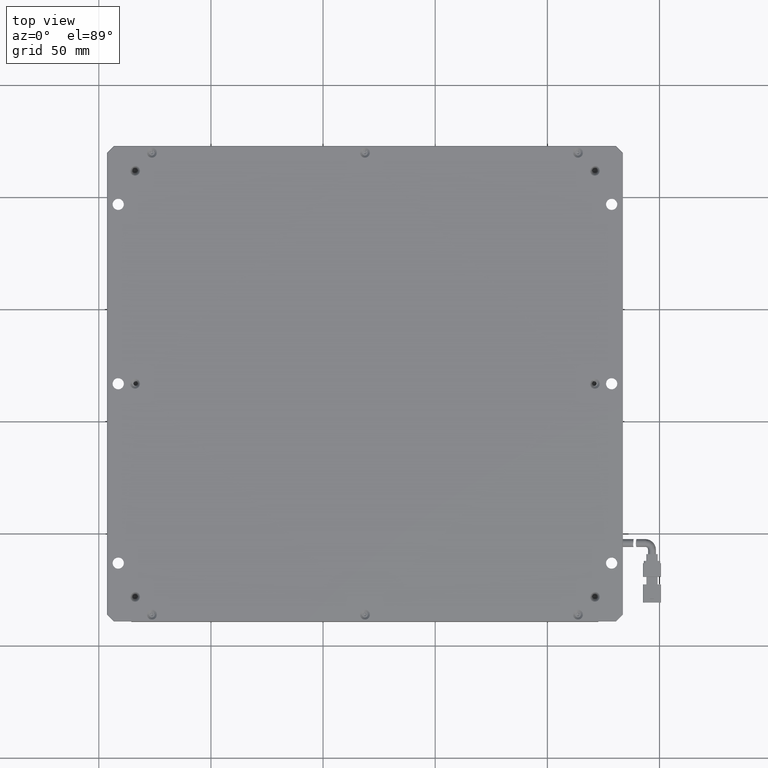
[diagram: clean part render]
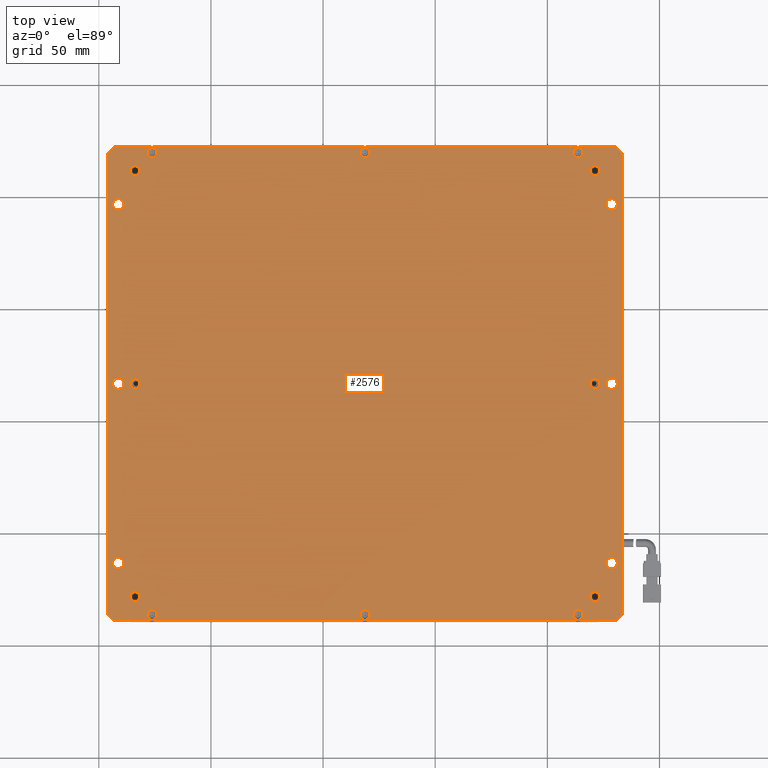
[diagram: same view with one face highlighted and labeled with its STEP entity id]
A machine part, top view. The second image highlights one B-rep face of the part: STEP entity #2576.
In plain terms, the highlighted planar face has unit normal (0, -0, 1).
Its self-contained STEP definition (entity closure, byte-faithful):
#47 = VERTEX_POINT ( 'NONE', #14358 ) ;
#54 = ORIENTED_EDGE ( 'NONE', *, *, #3240, .T. ) ;
#68 = ORIENTED_EDGE ( 'NONE', *, *, #10911, .F. ) ;
#232 = FACE_BOUND ( 'NONE', #1851, .T. ) ;
#233 = AXIS2_PLACEMENT_3D ( 'NONE', #2432, #897, #4274 ) ;
#266 = VERTEX_POINT ( 'NONE', #6426 ) ;
#312 = VERTEX_POINT ( 'NONE', #8160 ) ;
#415 = CARTESIAN_POINT ( 'NONE',  ( 16.46575058245078400, -136.3787539827808600, 1.999999999985902800 ) ) ;
#473 = CARTESIAN_POINT ( 'NONE',  ( 133.6657505824760800, -139.0787539827808200, 1.999999999976352700 ) ) ;
#510 = CIRCLE ( 'NONE', #3984, 2.500000000000002200 ) ;
#518 = DIRECTION ( 'NONE',  ( -0.7071067811865526800, -0.7071067811865422400, 1.737280514149831800E-015 ) ) ;
#574 = DIRECTION ( 'NONE',  ( 1.000000000000000000, 0.0000000000000000000, 0.0000000000000000000 ) ) ;
#583 = CARTESIAN_POINT ( 'NONE',  ( 18.66575058247609000, -136.3787539827808600, 1.999999999985902800 ) ) ;
#616 = CARTESIAN_POINT ( 'NONE',  ( -76.33424941752390700, 69.62124601721916400, 1.999999999985902800 ) ) ;
#674 = AXIS2_PLACEMENT_3D ( 'NONE', #2113, #21173, #7242 ) ;
#733 = EDGE_CURVE ( 'NONE', #1668, #15172, #14332, .T. ) ;
#877 = ORIENTED_EDGE ( 'NONE', *, *, #20774, .T. ) ;
#897 = DIRECTION ( 'NONE',  ( -0.0000000000000000000, 0.0000000000000000000, -1.000000000000000000 ) ) ;
#1046 = VERTEX_POINT ( 'NONE', #1672 ) ;
#1075 = FACE_BOUND ( 'NONE', #11427, .T. ) ;
#1104 = EDGE_CURVE ( 'NONE', #13782, #312, #12644, .T. ) ;
#1109 = CIRCLE ( 'NONE', #10738, 2.200000000061666400 ) ;
#1137 = ORIENTED_EDGE ( 'NONE', *, *, #6405, .T. ) ;
#1305 = EDGE_CURVE ( 'NONE', #10636, #11293, #17495, .T. ) ;
#1312 = CARTESIAN_POINT ( 'NONE',  ( -78.53424941752193400, -136.3787539827808100, 1.999999999985902800 ) ) ;
#1484 = CIRCLE ( 'NONE', #13340, 2.199999999998023100 ) ;
#1526 = AXIS2_PLACEMENT_3D ( 'NONE', #16575, #13045, #18215 ) ;
#1606 = VERTEX_POINT ( 'NONE', #3424 ) ;
#1617 = CARTESIAN_POINT ( 'NONE',  ( 128.6657505824760500, 46.62124601721915000, 1.999999999976353100 ) ) ;
#1636 = FACE_BOUND ( 'NONE', #8168, .T. ) ;
#1668 = VERTEX_POINT ( 'NONE', #7067 ) ;
#1672 = CARTESIAN_POINT ( 'NONE',  ( -78.53424941752193400, 69.62124601721916400, 1.999999999985902800 ) ) ;
#1807 = CARTESIAN_POINT ( 'NONE',  ( -86.03424941758555600, 61.62124601721919200, 1.999999999985902800 ) ) ;
#1851 = EDGE_LOOP ( 'NONE', ( #14798, #10312 ) ) ;
#1950 = CIRCLE ( 'NONE', #13888, 2.200000000061652600 ) ;
#1980 = EDGE_CURVE ( 'NONE', #3348, #9217, #4116, .T. ) ;
#2017 = EDGE_CURVE ( 'NONE', #1046, #21547, #5497, .T. ) ;
#2051 = CARTESIAN_POINT ( 'NONE',  ( 133.3657505824761200, -136.2544899140688700, 1.999999999976354900 ) ) ;
#2111 = DIRECTION ( 'NONE',  ( 1.000000000000000000, 0.0000000000000000000, 0.0000000000000000000 ) ) ;
#2113 = CARTESIAN_POINT ( 'NONE',  ( 18.66575058247609000, -136.3787539827808600, 1.999999999985902800 ) ) ;
#2167 = DIRECTION ( 'NONE',  ( 0.0000000000000000000, 0.0000000000000000000, -1.000000000000000000 ) ) ;
#2237 = CARTESIAN_POINT ( 'NONE',  ( 121.1657505824761100, -128.3787539827808100, 1.999999999929059400 ) ) ;
#2242 = DIRECTION ( 'NONE',  ( -1.000000000000000000, -0.0000000000000000000, -0.0000000000000000000 ) ) ;
#2276 = DIRECTION ( 'NONE',  ( 0.0000000000000000000, 0.0000000000000000000, -1.000000000000000000 ) ) ;
#2377 = CARTESIAN_POINT ( 'NONE',  ( -96.03424941752389500, 72.62124601721916400, 1.999999999976353100 ) ) ;
#2432 = CARTESIAN_POINT ( 'NONE',  ( 121.1657505824760500, 61.62124601721919200, 1.999999999929059400 ) ) ;
#2433 = VERTEX_POINT ( 'NONE', #18198 ) ;
#2504 = ORIENTED_EDGE ( 'NONE', *, *, #10300, .T. ) ;
#2506 = CARTESIAN_POINT ( 'NONE',  ( 133.6657505824760800, 72.32124601721918100, 1.999999999976353100 ) ) ;
#2527 = ORIENTED_EDGE ( 'NONE', *, *, #18387, .T. ) ;
#2545 = ORIENTED_EDGE ( 'NONE', *, *, #1980, .T. ) ;
#2576 = ADVANCED_FACE ( 'NONE', ( #9571, #232, #14213, #15305, #9028, #18513, #10393, #4649, #9314, #16900, #15040, #5214, #1636, #19577, #5750, #4913, #1075, #19047, #6017 ), #13400, .T. ) ;
#2682 = VERTEX_POINT ( 'NONE', #7606 ) ;
#2722 = EDGE_CURVE ( 'NONE', #15852, #19814, #20621, .T. ) ;
#2772 = CIRCLE ( 'NONE', #14168, 2.199999999932061600 ) ;
#2823 = CARTESIAN_POINT ( 'NONE',  ( 130.5414865137641100, 72.32124601721918100, 1.999999999976356700 ) ) ;
#2856 = ORIENTED_EDGE ( 'NONE', *, *, #5921, .T. ) ;
#2963 = AXIS2_PLACEMENT_3D ( 'NONE', #3630, #13817, #14028 ) ;
#3063 = VECTOR ( 'NONE', #518, 1000.000000000000100 ) ;
#3159 = CARTESIAN_POINT ( 'NONE',  ( 113.6657505824760800, 69.62124601721916400, 1.999999999985902800 ) ) ;
#3211 = DIRECTION ( 'NONE',  ( 0.0000000000000000000, 0.0000000000000000000, -1.000000000000000000 ) ) ;
#3212 = DIRECTION ( 'NONE',  ( 1.000000000000000000, 0.0000000000000000000, 0.0000000000000000000 ) ) ;
#3240 = EDGE_CURVE ( 'NONE', #9242, #3827, #12224, .T. ) ;
#3261 = AXIS2_PLACEMENT_3D ( 'NONE', #583, #7384, #12755 ) ;
#3348 = VERTEX_POINT ( 'NONE', #22538 ) ;
#3424 = CARTESIAN_POINT ( 'NONE',  ( -88.83424941752386400, -113.3787539827808200, 1.999999999976353100 ) ) ;
#3450 = ORIENTED_EDGE ( 'NONE', *, *, #22133, .T. ) ;
#3615 = DIRECTION ( 'NONE',  ( 1.000000000000000000, 0.0000000000000000000, 0.0000000000000000000 ) ) ;
#3630 = CARTESIAN_POINT ( 'NONE',  ( 121.1657505824761100, -128.3787539827808100, 1.999999999929059400 ) ) ;
#3825 = CARTESIAN_POINT ( 'NONE',  ( 121.1657505824761100, -33.37875398278082900, 1.999999999929059400 ) ) ;
#3827 = VERTEX_POINT ( 'NONE', #1312 ) ;
#3900 = ORIENTED_EDGE ( 'NONE', *, *, #8902, .T. ) ;
#3984 = AXIS2_PLACEMENT_3D ( 'NONE', #14491, #2167, #16150 ) ;
#4053 = DIRECTION ( 'NONE',  ( -0.0000000000000000000, 1.000000000000000000, 0.0000000000000000000 ) ) ;
#4060 = EDGE_CURVE ( 'NONE', #21547, #1046, #1484, .T. ) ;
#4116 = CIRCLE ( 'NONE', #6242, 2.200000000061652600 ) ;
#4221 = AXIS2_PLACEMENT_3D ( 'NONE', #9752, #19966, #18522 ) ;
#4241 = CARTESIAN_POINT ( 'NONE',  ( -83.83424941752387800, -33.37875398278082900, 1.999999999985902800 ) ) ;
#4274 = DIRECTION ( 'NONE',  ( 1.000000000000000000, 0.0000000000000000000, 0.0000000000000000000 ) ) ;
#4553 = VECTOR ( 'NONE', #9629, 1000.000000000000000 ) ;
#4578 = CIRCLE ( 'NONE', #19366, 2.200000000025306600 ) ;
#4649 = FACE_BOUND ( 'NONE', #10163, .T. ) ;
#4742 = ORIENTED_EDGE ( 'NONE', *, *, #1305, .T. ) ;
#4806 = EDGE_CURVE ( 'NONE', #15833, #16405, #11115, .T. ) ;
#4913 = FACE_BOUND ( 'NONE', #11873, .T. ) ;
#5139 = CIRCLE ( 'NONE', #674, 2.200000000025306600 ) ;
#5177 = DIRECTION ( 'NONE',  ( 0.0000000000000000000, 0.0000000000000000000, -1.000000000000000000 ) ) ;
#5214 = FACE_BOUND ( 'NONE', #9244, .T. ) ;
#5216 = DIRECTION ( 'NONE',  ( 0.0000000000000000000, -0.0000000000000000000, 1.000000000000000000 ) ) ;
#5249 = ORIENTED_EDGE ( 'NONE', *, *, #20494, .T. ) ;
#5365 = VERTEX_POINT ( 'NONE', #1807 ) ;
#5382 = CARTESIAN_POINT ( 'NONE',  ( 113.6657505824761600, -136.3787539827808900, 1.999999999985902800 ) ) ;
#5495 = VERTEX_POINT ( 'NONE', #18027 ) ;
#5497 = CIRCLE ( 'NONE', #1526, 2.199999999998023100 ) ;
#5522 = LINE ( 'NONE', #11534, #6609 ) ;
#5532 = VERTEX_POINT ( 'NONE', #17874 ) ;
#5750 = FACE_BOUND ( 'NONE', #12733, .T. ) ;
#5754 = DIRECTION ( 'NONE',  ( 0.0000000000000000000, 0.0000000000000000000, -1.000000000000000000 ) ) ;
#5775 = CARTESIAN_POINT ( 'NONE',  ( 131.1657505824760800, 46.62124601721915000, 1.999999999976353100 ) ) ;
#5866 = DIRECTION ( 'NONE',  ( 1.000000000000000000, 0.0000000000000000000, 0.0000000000000000000 ) ) ;
#5901 = LINE ( 'NONE', #22213, #14644 ) ;
#5916 = EDGE_LOOP ( 'NONE', ( #2856, #20169 ) ) ;
#5921 = EDGE_CURVE ( 'NONE', #15172, #1668, #14305, .T. ) ;
#5925 = AXIS2_PLACEMENT_3D ( 'NONE', #11137, #9405, #20045 ) ;
#5926 = CIRCLE ( 'NONE', #19969, 2.200000000061666400 ) ;
#5955 = DIRECTION ( 'NONE',  ( -0.0000000000000000000, 0.0000000000000000000, -1.000000000000000000 ) ) ;
#6017 = FACE_OUTER_BOUND ( 'NONE', #8872, .T. ) ;
#6067 = DIRECTION ( 'NONE',  ( -0.0000000000000000000, 0.0000000000000000000, -1.000000000000000000 ) ) ;
#6242 = AXIS2_PLACEMENT_3D ( 'NONE', #4241, #21599, #11278 ) ;
#6392 = VECTOR ( 'NONE', #2242, 1000.000000000000000 ) ;
#6405 = EDGE_CURVE ( 'NONE', #5365, #5495, #1109, .T. ) ;
#6426 = CARTESIAN_POINT ( 'NONE',  ( -93.83424941752387800, 46.62124601721917800, 1.999999999976353100 ) ) ;
#6466 = EDGE_CURVE ( 'NONE', #6818, #47, #12087, .T. ) ;
#6580 = AXIS2_PLACEMENT_3D ( 'NONE', #20293, #11997, #8329 ) ;
#6609 = VECTOR ( 'NONE', #11304, 1000.000000000000100 ) ;
#6818 = VERTEX_POINT ( 'NONE', #10247 ) ;
#6868 = DIRECTION ( 'NONE',  ( 1.000000000000000000, 0.0000000000000000000, 0.0000000000000000000 ) ) ;
#6877 = EDGE_CURVE ( 'NONE', #266, #22422, #17698, .T. ) ;
#6927 = AXIS2_PLACEMENT_3D ( 'NONE', #1617, #5754, #10558 ) ;
#6951 = VERTEX_POINT ( 'NONE', #15796 ) ;
#7067 = CARTESIAN_POINT ( 'NONE',  ( 118.9657505825440500, -128.3787539827808100, 1.999999999929059400 ) ) ;
#7077 = CARTESIAN_POINT ( 'NONE',  ( 20.86575058250139800, 69.62124601721916400, 1.999999999985902800 ) ) ;
#7242 = DIRECTION ( 'NONE',  ( 1.000000000000000000, 0.0000000000000000000, 0.0000000000000000000 ) ) ;
#7295 = ORIENTED_EDGE ( 'NONE', *, *, #16025, .T. ) ;
#7384 = DIRECTION ( 'NONE',  ( -0.0000000000000000000, 0.0000000000000000000, -1.000000000000000000 ) ) ;
#7449 = DIRECTION ( 'NONE',  ( 1.000000000000000000, 0.0000000000000000000, 0.0000000000000000000 ) ) ;
#7555 = CARTESIAN_POINT ( 'NONE',  ( 113.6657505824761600, -136.3787539827808900, 1.999999999985902800 ) ) ;
#7556 = DIRECTION ( 'NONE',  ( 1.347358039593765400E-016, -1.000000000000000000, 1.347358039593637200E-016 ) ) ;
#7606 = CARTESIAN_POINT ( 'NONE',  ( 111.4657505824803100, 69.62124601721916400, 1.999999999985902800 ) ) ;
#7610 = EDGE_LOOP ( 'NONE', ( #54, #3450 ) ) ;
#7675 = CARTESIAN_POINT ( 'NONE',  ( 113.6657505824760800, 69.62124601721916400, 1.999999999985902800 ) ) ;
#7685 = ORIENTED_EDGE ( 'NONE', *, *, #7909, .T. ) ;
#7721 = EDGE_CURVE ( 'NONE', #20722, #2682, #20408, .T. ) ;
#7777 = VERTEX_POINT ( 'NONE', #5775 ) ;
#7798 = CARTESIAN_POINT ( 'NONE',  ( 18.66575058247609000, 69.62124601721916400, 1.999999999985902800 ) ) ;
#7909 = EDGE_CURVE ( 'NONE', #2682, #20722, #17138, .T. ) ;
#8036 = DIRECTION ( 'NONE',  ( 0.0000000000000000000, 0.0000000000000000000, -1.000000000000000000 ) ) ;
#8160 = CARTESIAN_POINT ( 'NONE',  ( 111.4657505824804800, -136.3787539827808900, 1.999999999985902800 ) ) ;
#8168 = EDGE_LOOP ( 'NONE', ( #877, #13450 ) ) ;
#8224 = AXIS2_PLACEMENT_3D ( 'NONE', #19282, #5177, #8770 ) ;
#8230 = CIRCLE ( 'NONE', #14765, 2.500000000000002200 ) ;
#8283 = CARTESIAN_POINT ( 'NONE',  ( 123.3657505824081700, -128.3787539827808100, 1.999999999929059400 ) ) ;
#8329 = DIRECTION ( 'NONE',  ( 1.000000000000000000, 0.0000000000000000000, 0.0000000000000000000 ) ) ;
#8595 = EDGE_LOOP ( 'NONE', ( #4742, #15783 ) ) ;
#8728 = DIRECTION ( 'NONE',  ( -0.0000000000000000000, 0.0000000000000000000, -1.000000000000000000 ) ) ;
#8770 = DIRECTION ( 'NONE',  ( 1.000000000000000000, 0.0000000000000000000, 0.0000000000000000000 ) ) ;
#8790 = LINE ( 'NONE', #9208, #13173 ) ;
#8828 = ORIENTED_EDGE ( 'NONE', *, *, #12744, .T. ) ;
#8872 = EDGE_LOOP ( 'NONE', ( #18189, #16277, #12843, #68, #16240, #14500, #17092, #17769 ) ) ;
#8892 = DIRECTION ( 'NONE',  ( -0.0000000000000000000, -0.0000000000000000000, -1.000000000000000000 ) ) ;
#8902 = EDGE_CURVE ( 'NONE', #20536, #10826, #5139, .T. ) ;
#8968 = EDGE_CURVE ( 'NONE', #11293, #10636, #10576, .T. ) ;
#9028 = FACE_BOUND ( 'NONE', #20743, .T. ) ;
#9070 = EDGE_CURVE ( 'NONE', #6951, #20187, #9223, .T. ) ;
#9127 = DIRECTION ( 'NONE',  ( 1.000000000000000000, 0.0000000000000000000, 0.0000000000000000000 ) ) ;
#9135 = ORIENTED_EDGE ( 'NONE', *, *, #13595, .T. ) ;
#9208 = CARTESIAN_POINT ( 'NONE',  ( -93.20998534881194100, -139.0787539827808200, 1.999999999976352700 ) ) ;
#9217 = VERTEX_POINT ( 'NONE', #13837 ) ;
#9223 = LINE ( 'NONE', #2506, #4553 ) ;
#9242 = VERTEX_POINT ( 'NONE', #22148 ) ;
#9244 = EDGE_LOOP ( 'NONE', ( #16570, #17970 ) ) ;
#9245 = EDGE_CURVE ( 'NONE', #12075, #6951, #5901, .T. ) ;
#9259 = CARTESIAN_POINT ( 'NONE',  ( -91.33424941752386400, -113.3787539827808200, 1.999999999976353100 ) ) ;
#9314 = FACE_BOUND ( 'NONE', #15053, .T. ) ;
#9405 = DIRECTION ( 'NONE',  ( -0.0000000000000000000, 0.0000000000000000000, -1.000000000000000000 ) ) ;
#9462 = CARTESIAN_POINT ( 'NONE',  ( -91.33424941752386400, -33.37875398278082900, 1.999999999976353100 ) ) ;
#9463 = AXIS2_PLACEMENT_3D ( 'NONE', #21629, #5955, #18102 ) ;
#9542 = DIRECTION ( 'NONE',  ( -0.0000000000000000000, 0.0000000000000000000, -1.000000000000000000 ) ) ;
#9571 = FACE_BOUND ( 'NONE', #5916, .T. ) ;
#9629 = DIRECTION ( 'NONE',  ( 1.000000000000000000, 0.0000000000000000000, 0.0000000000000000000 ) ) ;
#9752 = CARTESIAN_POINT ( 'NONE',  ( 128.6657505824760500, -33.37875398278082900, 1.999999999976353100 ) ) ;
#9759 = ORIENTED_EDGE ( 'NONE', *, *, #19632, .T. ) ;
#9957 = CARTESIAN_POINT ( 'NONE',  ( -96.03424941752388100, 69.49698194850722600, 1.999999999976351800 ) ) ;
#10163 = EDGE_LOOP ( 'NONE', ( #2545, #15943 ) ) ;
#10209 = CARTESIAN_POINT ( 'NONE',  ( -88.83424941752387800, 46.62124601721917800, 1.999999999976353100 ) ) ;
#10247 = CARTESIAN_POINT ( 'NONE',  ( 133.3657505824761200, -136.2544899140688400, 1.999999999976360900 ) ) ;
#10248 = CARTESIAN_POINT ( 'NONE',  ( 128.6657505824760500, -113.3787539827808200, 1.999999999976353100 ) ) ;
#10300 = EDGE_CURVE ( 'NONE', #11540, #2433, #14267, .T. ) ;
#10312 = ORIENTED_EDGE ( 'NONE', *, *, #20689, .T. ) ;
#10367 = CARTESIAN_POINT ( 'NONE',  ( -86.03424941758552800, -128.3787539827808100, 1.999999999985902800 ) ) ;
#10388 = DIRECTION ( 'NONE',  ( 0.0000000000000000000, 0.0000000000000000000, -1.000000000000000000 ) ) ;
#10393 = FACE_BOUND ( 'NONE', #18024, .T. ) ;
#10538 = DIRECTION ( 'NONE',  ( 1.000000000000000000, 0.0000000000000000000, 0.0000000000000000000 ) ) ;
#10557 = EDGE_CURVE ( 'NONE', #21151, #17861, #16943, .T. ) ;
#10558 = DIRECTION ( 'NONE',  ( 1.000000000000000000, 0.0000000000000000000, 0.0000000000000000000 ) ) ;
#10576 = CIRCLE ( 'NONE', #233, 2.199999999932117600 ) ;
#10636 = VERTEX_POINT ( 'NONE', #11865 ) ;
#10648 = CARTESIAN_POINT ( 'NONE',  ( 16.46575058245078400, 69.62124601721916400, 1.999999999985902800 ) ) ;
#10672 = CIRCLE ( 'NONE', #6927, 2.500000000000002200 ) ;
#10738 = AXIS2_PLACEMENT_3D ( 'NONE', #14301, #14451, #17900 ) ;
#10826 = VERTEX_POINT ( 'NONE', #19451 ) ;
#10843 = EDGE_CURVE ( 'NONE', #19890, #6818, #13193, .T. ) ;
#10911 = EDGE_CURVE ( 'NONE', #20187, #19890, #5522, .T. ) ;
#10957 = DIRECTION ( 'NONE',  ( -0.0000000000000000000, -0.0000000000000000000, -1.000000000000000000 ) ) ;
#10969 = EDGE_LOOP ( 'NONE', ( #13724, #21469 ) ) ;
#10975 = CARTESIAN_POINT ( 'NONE',  ( -83.83424941752387800, -128.3787539827808100, 1.999999999985902800 ) ) ;
#11115 = CIRCLE ( 'NONE', #17259, 2.199999999932061600 ) ;
#11137 = CARTESIAN_POINT ( 'NONE',  ( 121.1657505824760500, 61.62124601721919200, 1.999999999929059400 ) ) ;
#11209 = CARTESIAN_POINT ( 'NONE',  ( -76.33424941752390700, -136.3787539827808100, 1.999999999985902800 ) ) ;
#11278 = DIRECTION ( 'NONE',  ( 1.000000000000000000, 0.0000000000000000000, 0.0000000000000000000 ) ) ;
#11293 = VERTEX_POINT ( 'NONE', #21528 ) ;
#11304 = DIRECTION ( 'NONE',  ( 0.7071067811865474600, -0.7071067811865474600, -1.085800321343647500E-016 ) ) ;
#11427 = EDGE_LOOP ( 'NONE', ( #21737, #2527 ) ) ;
#11534 = CARTESIAN_POINT ( 'NONE',  ( 130.5414865137641100, 72.32124601721918100, 1.999999999976367800 ) ) ;
#11540 = VERTEX_POINT ( 'NONE', #15309 ) ;
#11617 = EDGE_CURVE ( 'NONE', #14565, #16496, #14997, .T. ) ;
#11865 = CARTESIAN_POINT ( 'NONE',  ( 123.3657505824081700, 61.62124601721919200, 1.999999999929059400 ) ) ;
#11873 = EDGE_LOOP ( 'NONE', ( #14279, #7295 ) ) ;
#11997 = DIRECTION ( 'NONE',  ( 0.0000000000000000000, 0.0000000000000000000, -1.000000000000000000 ) ) ;
#12073 = AXIS2_PLACEMENT_3D ( 'NONE', #21501, #6067, #13092 ) ;
#12075 = VERTEX_POINT ( 'NONE', #9957 ) ;
#12087 = LINE ( 'NONE', #2051, #3063 ) ;
#12120 = EDGE_CURVE ( 'NONE', #1606, #16964, #16564, .T. ) ;
#12224 = CIRCLE ( 'NONE', #18499, 2.199999999998023100 ) ;
#12612 = VERTEX_POINT ( 'NONE', #17512 ) ;
#12644 = CIRCLE ( 'NONE', #21885, 2.199999999995677400 ) ;
#12667 = CARTESIAN_POINT ( 'NONE',  ( -83.83424941752389300, 61.62124601721919200, 1.999999999985902800 ) ) ;
#12675 = DIRECTION ( 'NONE',  ( 1.000000000000000000, 0.0000000000000000000, 0.0000000000000000000 ) ) ;
#12733 = EDGE_LOOP ( 'NONE', ( #18932, #9759 ) ) ;
#12744 = EDGE_CURVE ( 'NONE', #10826, #20536, #19437, .T. ) ;
#12755 = DIRECTION ( 'NONE',  ( 1.000000000000000000, 0.0000000000000000000, 0.0000000000000000000 ) ) ;
#12843 = ORIENTED_EDGE ( 'NONE', *, *, #10843, .F. ) ;
#13015 = DIRECTION ( 'NONE',  ( 1.000000000000000000, 0.0000000000000000000, 0.0000000000000000000 ) ) ;
#13045 = DIRECTION ( 'NONE',  ( -0.0000000000000000000, 0.0000000000000000000, -1.000000000000000000 ) ) ;
#13092 = DIRECTION ( 'NONE',  ( 1.000000000000000000, 0.0000000000000000000, 0.0000000000000000000 ) ) ;
#13123 = DIRECTION ( 'NONE',  ( -0.0000000000000000000, 0.0000000000000000000, -1.000000000000000000 ) ) ;
#13148 = EDGE_CURVE ( 'NONE', #47, #20471, #15662, .T. ) ;
#13173 = VECTOR ( 'NONE', #14234, 1000.000000000000000 ) ;
#13193 = LINE ( 'NONE', #16167, #21525 ) ;
#13304 = CARTESIAN_POINT ( 'NONE',  ( 123.3657505824081700, -33.37875398278082900, 1.999999999929059400 ) ) ;
#13340 = AXIS2_PLACEMENT_3D ( 'NONE', #616, #21201, #17983 ) ;
#13357 = DIRECTION ( 'NONE',  ( 0.0000000000000000000, 0.0000000000000000000, -1.000000000000000000 ) ) ;
#13400 = PLANE ( 'NONE',  #13753 ) ;
#13450 = ORIENTED_EDGE ( 'NONE', *, *, #6877, .T. ) ;
#13578 = AXIS2_PLACEMENT_3D ( 'NONE', #7675, #10957, #7449 ) ;
#13595 = EDGE_CURVE ( 'NONE', #12612, #7777, #10672, .T. ) ;
#13680 = DIRECTION ( 'NONE',  ( 0.7071067811865422400, 0.7071067811865526800, -1.737280514149848800E-015 ) ) ;
#13724 = ORIENTED_EDGE ( 'NONE', *, *, #4060, .T. ) ;
#13732 = AXIS2_PLACEMENT_3D ( 'NONE', #9259, #2276, #2111 ) ;
#13753 = AXIS2_PLACEMENT_3D ( 'NONE', #13857, #5216, #20881 ) ;
#13782 = VERTEX_POINT ( 'NONE', #18196 ) ;
#13797 = CARTESIAN_POINT ( 'NONE',  ( -74.13424941752589300, 69.62124601721916400, 1.999999999985902800 ) ) ;
#13817 = DIRECTION ( 'NONE',  ( -0.0000000000000000000, 0.0000000000000000000, -1.000000000000000000 ) ) ;
#13837 = CARTESIAN_POINT ( 'NONE',  ( -86.03424941758552800, -33.37875398278082900, 1.999999999985902800 ) ) ;
#13857 = CARTESIAN_POINT ( 'NONE',  ( 133.6657505824760800, 72.62124601721916400, 1.999999999976353100 ) ) ;
#13888 = AXIS2_PLACEMENT_3D ( 'NONE', #10975, #17642, #17870 ) ;
#14028 = DIRECTION ( 'NONE',  ( 1.000000000000000000, 0.0000000000000000000, 0.0000000000000000000 ) ) ;
#14168 = AXIS2_PLACEMENT_3D ( 'NONE', #21608, #13123, #574 ) ;
#14213 = FACE_BOUND ( 'NONE', #8595, .T. ) ;
#14234 = DIRECTION ( 'NONE',  ( -0.7071067811865473500, 0.7071067811865477900, -1.085800321343646600E-016 ) ) ;
#14267 = CIRCLE ( 'NONE', #16893, 2.500000000000002200 ) ;
#14279 = ORIENTED_EDGE ( 'NONE', *, *, #10557, .T. ) ;
#14301 = CARTESIAN_POINT ( 'NONE',  ( -83.83424941752389300, 61.62124601721919200, 1.999999999985902800 ) ) ;
#14305 = CIRCLE ( 'NONE', #15556, 2.199999999932061600 ) ;
#14323 = CARTESIAN_POINT ( 'NONE',  ( 131.1657505824760800, -113.3787539827808200, 1.999999999976353100 ) ) ;
#14332 = CIRCLE ( 'NONE', #2963, 2.199999999932061600 ) ;
#14358 = CARTESIAN_POINT ( 'NONE',  ( 130.5414865137641700, -139.0787539827808200, 1.999999999976354900 ) ) ;
#14424 = DIRECTION ( 'NONE',  ( -0.0000000000000000000, 0.0000000000000000000, -1.000000000000000000 ) ) ;
#14448 = EDGE_CURVE ( 'NONE', #16483, #20410, #15512, .T. ) ;
#14451 = DIRECTION ( 'NONE',  ( -0.0000000000000000000, 0.0000000000000000000, -1.000000000000000000 ) ) ;
#14491 = CARTESIAN_POINT ( 'NONE',  ( 128.6657505824760500, -33.37875398278082900, 1.999999999976353100 ) ) ;
#14500 = ORIENTED_EDGE ( 'NONE', *, *, #9245, .F. ) ;
#14560 = ORIENTED_EDGE ( 'NONE', *, *, #16327, .T. ) ;
#14565 = VERTEX_POINT ( 'NONE', #10367 ) ;
#14644 = VECTOR ( 'NONE', #13680, 1000.000000000000100 ) ;
#14765 = AXIS2_PLACEMENT_3D ( 'NONE', #9462, #21543, #5866 ) ;
#14784 = ORIENTED_EDGE ( 'NONE', *, *, #7721, .T. ) ;
#14798 = ORIENTED_EDGE ( 'NONE', *, *, #4806, .T. ) ;
#14947 = CARTESIAN_POINT ( 'NONE',  ( 115.8657505824718300, 69.62124601721916400, 1.999999999985902800 ) ) ;
#14997 = CIRCLE ( 'NONE', #18670, 2.200000000061652600 ) ;
#15040 = FACE_BOUND ( 'NONE', #19404, .T. ) ;
#15053 = EDGE_LOOP ( 'NONE', ( #17998, #1137 ) ) ;
#15172 = VERTEX_POINT ( 'NONE', #8283 ) ;
#15305 = FACE_BOUND ( 'NONE', #18713, .T. ) ;
#15309 = CARTESIAN_POINT ( 'NONE',  ( -88.83424941752386400, -33.37875398278082900, 1.999999999976353100 ) ) ;
#15471 = EDGE_CURVE ( 'NONE', #312, #13782, #16992, .T. ) ;
#15512 = CIRCLE ( 'NONE', #9463, 2.200000000025306600 ) ;
#15556 = AXIS2_PLACEMENT_3D ( 'NONE', #2237, #19345, #17849 ) ;
#15662 = LINE ( 'NONE', #473, #6392 ) ;
#15693 = CARTESIAN_POINT ( 'NONE',  ( -83.83424941752387800, -128.3787539827808100, 1.999999999985902800 ) ) ;
#15754 = DIRECTION ( 'NONE',  ( 1.000000000000000000, 0.0000000000000000000, 0.0000000000000000000 ) ) ;
#15783 = ORIENTED_EDGE ( 'NONE', *, *, #8968, .T. ) ;
#15796 = CARTESIAN_POINT ( 'NONE',  ( -93.20998534881192700, 72.32124601721918100, 1.999999999976346300 ) ) ;
#15833 = VERTEX_POINT ( 'NONE', #13304 ) ;
#15852 = VERTEX_POINT ( 'NONE', #21713 ) ;
#15943 = ORIENTED_EDGE ( 'NONE', *, *, #19151, .T. ) ;
#16025 = EDGE_CURVE ( 'NONE', #17861, #21151, #16690, .T. ) ;
#16040 = LINE ( 'NONE', #2377, #22493 ) ;
#16110 = ORIENTED_EDGE ( 'NONE', *, *, #15471, .T. ) ;
#16150 = DIRECTION ( 'NONE',  ( 1.000000000000000000, 0.0000000000000000000, 0.0000000000000000000 ) ) ;
#16154 = CIRCLE ( 'NONE', #21497, 2.500000000000002200 ) ;
#16167 = CARTESIAN_POINT ( 'NONE',  ( 133.3657505824760700, 72.62124601721916400, 1.999999999976353600 ) ) ;
#16240 = ORIENTED_EDGE ( 'NONE', *, *, #9070, .F. ) ;
#16277 = ORIENTED_EDGE ( 'NONE', *, *, #6466, .F. ) ;
#16327 = EDGE_CURVE ( 'NONE', #2433, #11540, #8230, .T. ) ;
#16405 = VERTEX_POINT ( 'NONE', #17170 ) ;
#16483 = VERTEX_POINT ( 'NONE', #10648 ) ;
#16496 = VERTEX_POINT ( 'NONE', #21004 ) ;
#16564 = CIRCLE ( 'NONE', #8224, 2.500000000000002200 ) ;
#16570 = ORIENTED_EDGE ( 'NONE', *, *, #21678, .T. ) ;
#16575 = CARTESIAN_POINT ( 'NONE',  ( -76.33424941752390700, 69.62124601721916400, 1.999999999985902800 ) ) ;
#16690 = CIRCLE ( 'NONE', #6580, 2.500000000000002200 ) ;
#16893 = AXIS2_PLACEMENT_3D ( 'NONE', #21954, #8036, #20152 ) ;
#16900 = FACE_BOUND ( 'NONE', #10969, .T. ) ;
#16943 = CIRCLE ( 'NONE', #21054, 2.500000000000002200 ) ;
#16964 = VERTEX_POINT ( 'NONE', #17666 ) ;
#16992 = CIRCLE ( 'NONE', #18474, 2.199999999995677400 ) ;
#17068 = EDGE_CURVE ( 'NONE', #7777, #12612, #21555, .T. ) ;
#17092 = ORIENTED_EDGE ( 'NONE', *, *, #21575, .F. ) ;
#17138 = CIRCLE ( 'NONE', #21792, 2.199999999995760900 ) ;
#17170 = CARTESIAN_POINT ( 'NONE',  ( 118.9657505825440500, -33.37875398278082900, 1.999999999929059400 ) ) ;
#17259 = AXIS2_PLACEMENT_3D ( 'NONE', #3825, #20889, #3615 ) ;
#17495 = CIRCLE ( 'NONE', #5925, 2.199999999932117600 ) ;
#17503 = EDGE_CURVE ( 'NONE', #20471, #5532, #8790, .T. ) ;
#17512 = CARTESIAN_POINT ( 'NONE',  ( 126.1657505824760600, 46.62124601721915000, 1.999999999976353100 ) ) ;
#17601 = ORIENTED_EDGE ( 'NONE', *, *, #11617, .T. ) ;
#17642 = DIRECTION ( 'NONE',  ( -0.0000000000000000000, 0.0000000000000000000, -1.000000000000000000 ) ) ;
#17666 = CARTESIAN_POINT ( 'NONE',  ( -93.83424941752386400, -113.3787539827808200, 1.999999999976353100 ) ) ;
#17698 = CIRCLE ( 'NONE', #19442, 2.500000000000002200 ) ;
#17769 = ORIENTED_EDGE ( 'NONE', *, *, #17503, .F. ) ;
#17849 = DIRECTION ( 'NONE',  ( 1.000000000000000000, 0.0000000000000000000, 0.0000000000000000000 ) ) ;
#17861 = VERTEX_POINT ( 'NONE', #18935 ) ;
#17870 = DIRECTION ( 'NONE',  ( 1.000000000000000000, 0.0000000000000000000, 0.0000000000000000000 ) ) ;
#17874 = CARTESIAN_POINT ( 'NONE',  ( -96.03424941752389500, -136.2544899140688400, 1.999999999976353100 ) ) ;
#17900 = DIRECTION ( 'NONE',  ( 1.000000000000000000, 0.0000000000000000000, 0.0000000000000000000 ) ) ;
#17950 = DIRECTION ( 'NONE',  ( 1.000000000000000000, 0.0000000000000000000, 0.0000000000000000000 ) ) ;
#17970 = ORIENTED_EDGE ( 'NONE', *, *, #14448, .T. ) ;
#17974 = DIRECTION ( 'NONE',  ( 0.0000000000000000000, 0.0000000000000000000, -1.000000000000000000 ) ) ;
#17983 = DIRECTION ( 'NONE',  ( 1.000000000000000000, 0.0000000000000000000, 0.0000000000000000000 ) ) ;
#17998 = ORIENTED_EDGE ( 'NONE', *, *, #22194, .T. ) ;
#18024 = EDGE_LOOP ( 'NONE', ( #5249, #17601 ) ) ;
#18027 = CARTESIAN_POINT ( 'NONE',  ( -81.63424941746222900, 61.62124601721919200, 1.999999999985902800 ) ) ;
#18102 = DIRECTION ( 'NONE',  ( 1.000000000000000000, 0.0000000000000000000, 0.0000000000000000000 ) ) ;
#18116 = DIRECTION ( 'NONE',  ( -0.0000000000000000000, 0.0000000000000000000, -1.000000000000000000 ) ) ;
#18189 = ORIENTED_EDGE ( 'NONE', *, *, #13148, .F. ) ;
#18196 = CARTESIAN_POINT ( 'NONE',  ( 115.8657505824718300, -136.3787539827808900, 1.999999999985902800 ) ) ;
#18198 = CARTESIAN_POINT ( 'NONE',  ( -93.83424941752386400, -33.37875398278082900, 1.999999999976353100 ) ) ;
#18215 = DIRECTION ( 'NONE',  ( 1.000000000000000000, 0.0000000000000000000, 0.0000000000000000000 ) ) ;
#18314 = CARTESIAN_POINT ( 'NONE',  ( -91.33424941752387800, 46.62124601721917800, 1.999999999976353100 ) ) ;
#18387 = EDGE_CURVE ( 'NONE', #19814, #15852, #510, .T. ) ;
#18402 = CARTESIAN_POINT ( 'NONE',  ( 126.1657505824760600, -33.37875398278082900, 1.999999999976353100 ) ) ;
#18474 = AXIS2_PLACEMENT_3D ( 'NONE', #5382, #8892, #19254 ) ;
#18499 = AXIS2_PLACEMENT_3D ( 'NONE', #22392, #8728, #10538 ) ;
#18513 = FACE_BOUND ( 'NONE', #7610, .T. ) ;
#18522 = DIRECTION ( 'NONE',  ( 1.000000000000000000, 0.0000000000000000000, 0.0000000000000000000 ) ) ;
#18670 = AXIS2_PLACEMENT_3D ( 'NONE', #15693, #20690, #15754 ) ;
#18713 = EDGE_LOOP ( 'NONE', ( #22164, #16110 ) ) ;
#18925 = CARTESIAN_POINT ( 'NONE',  ( -93.20998534881194100, -139.0787539827808200, 1.999999999976353100 ) ) ;
#18932 = ORIENTED_EDGE ( 'NONE', *, *, #12120, .T. ) ;
#18935 = CARTESIAN_POINT ( 'NONE',  ( 126.1657505824760600, -113.3787539827808200, 1.999999999976353100 ) ) ;
#19047 = FACE_BOUND ( 'NONE', #20469, .T. ) ;
#19151 = EDGE_CURVE ( 'NONE', #9217, #3348, #21376, .T. ) ;
#19158 = EDGE_LOOP ( 'NONE', ( #2504, #14560 ) ) ;
#19254 = DIRECTION ( 'NONE',  ( 1.000000000000000000, 0.0000000000000000000, 0.0000000000000000000 ) ) ;
#19282 = CARTESIAN_POINT ( 'NONE',  ( -91.33424941752386400, -113.3787539827808200, 1.999999999976353100 ) ) ;
#19345 = DIRECTION ( 'NONE',  ( -0.0000000000000000000, 0.0000000000000000000, -1.000000000000000000 ) ) ;
#19366 = AXIS2_PLACEMENT_3D ( 'NONE', #7798, #18116, #13015 ) ;
#19404 = EDGE_LOOP ( 'NONE', ( #14784, #7685 ) ) ;
#19437 = CIRCLE ( 'NONE', #3261, 2.200000000025306600 ) ;
#19442 = AXIS2_PLACEMENT_3D ( 'NONE', #20589, #3211, #6868 ) ;
#19451 = CARTESIAN_POINT ( 'NONE',  ( 20.86575058250139800, -136.3787539827808600, 1.999999999985902800 ) ) ;
#19577 = FACE_BOUND ( 'NONE', #19158, .T. ) ;
#19613 = CARTESIAN_POINT ( 'NONE',  ( 128.6657505824760500, 46.62124601721915000, 1.999999999976353100 ) ) ;
#19632 = EDGE_CURVE ( 'NONE', #16964, #1606, #21620, .T. ) ;
#19758 = CIRCLE ( 'NONE', #22552, 2.199999999998023100 ) ;
#19814 = VERTEX_POINT ( 'NONE', #18402 ) ;
#19826 = DIRECTION ( 'NONE',  ( 1.000000000000000000, 0.0000000000000000000, 0.0000000000000000000 ) ) ;
#19890 = VERTEX_POINT ( 'NONE', #22077 ) ;
#19966 = DIRECTION ( 'NONE',  ( 0.0000000000000000000, 0.0000000000000000000, -1.000000000000000000 ) ) ;
#19969 = AXIS2_PLACEMENT_3D ( 'NONE', #12667, #14424, #19826 ) ;
#20045 = DIRECTION ( 'NONE',  ( 1.000000000000000000, 0.0000000000000000000, 0.0000000000000000000 ) ) ;
#20152 = DIRECTION ( 'NONE',  ( 1.000000000000000000, 0.0000000000000000000, 0.0000000000000000000 ) ) ;
#20169 = ORIENTED_EDGE ( 'NONE', *, *, #733, .T. ) ;
#20187 = VERTEX_POINT ( 'NONE', #2823 ) ;
#20194 = DIRECTION ( 'NONE',  ( 1.000000000000000000, 0.0000000000000000000, 0.0000000000000000000 ) ) ;
#20293 = CARTESIAN_POINT ( 'NONE',  ( 128.6657505824760500, -113.3787539827808200, 1.999999999976353100 ) ) ;
#20408 = CIRCLE ( 'NONE', #13578, 2.199999999995760900 ) ;
#20410 = VERTEX_POINT ( 'NONE', #7077 ) ;
#20469 = EDGE_LOOP ( 'NONE', ( #22201, #9135 ) ) ;
#20471 = VERTEX_POINT ( 'NONE', #18925 ) ;
#20473 = DIRECTION ( 'NONE',  ( 1.000000000000000000, 0.0000000000000000000, 0.0000000000000000000 ) ) ;
#20494 = EDGE_CURVE ( 'NONE', #16496, #14565, #1950, .T. ) ;
#20536 = VERTEX_POINT ( 'NONE', #415 ) ;
#20551 = AXIS2_PLACEMENT_3D ( 'NONE', #19613, #17974, #9127 ) ;
#20589 = CARTESIAN_POINT ( 'NONE',  ( -91.33424941752387800, 46.62124601721917800, 1.999999999976353100 ) ) ;
#20621 = CIRCLE ( 'NONE', #4221, 2.500000000000002200 ) ;
#20689 = EDGE_CURVE ( 'NONE', #16405, #15833, #2772, .T. ) ;
#20690 = DIRECTION ( 'NONE',  ( -0.0000000000000000000, 0.0000000000000000000, -1.000000000000000000 ) ) ;
#20722 = VERTEX_POINT ( 'NONE', #14947 ) ;
#20743 = EDGE_LOOP ( 'NONE', ( #8828, #3900 ) ) ;
#20774 = EDGE_CURVE ( 'NONE', #22422, #266, #16154, .T. ) ;
#20881 = DIRECTION ( 'NONE',  ( 1.000000000000000000, 0.0000000000000000000, -0.0000000000000000000 ) ) ;
#20889 = DIRECTION ( 'NONE',  ( -0.0000000000000000000, 0.0000000000000000000, -1.000000000000000000 ) ) ;
#21004 = CARTESIAN_POINT ( 'NONE',  ( -81.63424941746222900, -128.3787539827808100, 1.999999999985902800 ) ) ;
#21054 = AXIS2_PLACEMENT_3D ( 'NONE', #10248, #10388, #3212 ) ;
#21151 = VERTEX_POINT ( 'NONE', #14323 ) ;
#21173 = DIRECTION ( 'NONE',  ( -0.0000000000000000000, 0.0000000000000000000, -1.000000000000000000 ) ) ;
#21201 = DIRECTION ( 'NONE',  ( -0.0000000000000000000, 0.0000000000000000000, -1.000000000000000000 ) ) ;
#21242 = DIRECTION ( 'NONE',  ( -0.0000000000000000000, -0.0000000000000000000, -1.000000000000000000 ) ) ;
#21376 = CIRCLE ( 'NONE', #12073, 2.200000000061652600 ) ;
#21469 = ORIENTED_EDGE ( 'NONE', *, *, #2017, .T. ) ;
#21497 = AXIS2_PLACEMENT_3D ( 'NONE', #18314, #13357, #20194 ) ;
#21501 = CARTESIAN_POINT ( 'NONE',  ( -83.83424941752387800, -33.37875398278082900, 1.999999999985902800 ) ) ;
#21525 = VECTOR ( 'NONE', #7556, 1000.000000000000000 ) ;
#21528 = CARTESIAN_POINT ( 'NONE',  ( 118.9657505825439300, 61.62124601721919200, 1.999999999929059400 ) ) ;
#21543 = DIRECTION ( 'NONE',  ( 0.0000000000000000000, 0.0000000000000000000, -1.000000000000000000 ) ) ;
#21547 = VERTEX_POINT ( 'NONE', #13797 ) ;
#21555 = CIRCLE ( 'NONE', #20551, 2.500000000000002200 ) ;
#21575 = EDGE_CURVE ( 'NONE', #5532, #12075, #16040, .T. ) ;
#21599 = DIRECTION ( 'NONE',  ( -0.0000000000000000000, 0.0000000000000000000, -1.000000000000000000 ) ) ;
#21608 = CARTESIAN_POINT ( 'NONE',  ( 121.1657505824761100, -33.37875398278082900, 1.999999999929059400 ) ) ;
#21620 = CIRCLE ( 'NONE', #13732, 2.500000000000002200 ) ;
#21629 = CARTESIAN_POINT ( 'NONE',  ( 18.66575058247609000, 69.62124601721916400, 1.999999999985902800 ) ) ;
#21678 = EDGE_CURVE ( 'NONE', #20410, #16483, #4578, .T. ) ;
#21713 = CARTESIAN_POINT ( 'NONE',  ( 131.1657505824760800, -33.37875398278082900, 1.999999999976353100 ) ) ;
#21737 = ORIENTED_EDGE ( 'NONE', *, *, #2722, .T. ) ;
#21792 = AXIS2_PLACEMENT_3D ( 'NONE', #3159, #22119, #20473 ) ;
#21885 = AXIS2_PLACEMENT_3D ( 'NONE', #7555, #21242, #12675 ) ;
#21954 = CARTESIAN_POINT ( 'NONE',  ( -91.33424941752386400, -33.37875398278082900, 1.999999999976353100 ) ) ;
#22077 = CARTESIAN_POINT ( 'NONE',  ( 133.3657505824760700, 69.49698194850722600, 1.999999999976357100 ) ) ;
#22119 = DIRECTION ( 'NONE',  ( -0.0000000000000000000, -0.0000000000000000000, -1.000000000000000000 ) ) ;
#22133 = EDGE_CURVE ( 'NONE', #3827, #9242, #19758, .T. ) ;
#22148 = CARTESIAN_POINT ( 'NONE',  ( -74.13424941752589300, -136.3787539827808100, 1.999999999985902800 ) ) ;
#22164 = ORIENTED_EDGE ( 'NONE', *, *, #1104, .T. ) ;
#22194 = EDGE_CURVE ( 'NONE', #5495, #5365, #5926, .T. ) ;
#22201 = ORIENTED_EDGE ( 'NONE', *, *, #17068, .T. ) ;
#22213 = CARTESIAN_POINT ( 'NONE',  ( -96.03424941752385300, 69.49698194850722600, 1.999999999976348000 ) ) ;
#22392 = CARTESIAN_POINT ( 'NONE',  ( -76.33424941752390700, -136.3787539827808100, 1.999999999985902800 ) ) ;
#22422 = VERTEX_POINT ( 'NONE', #10209 ) ;
#22493 = VECTOR ( 'NONE', #4053, 1000.000000000000000 ) ;
#22538 = CARTESIAN_POINT ( 'NONE',  ( -81.63424941746222900, -33.37875398278082900, 1.999999999985902800 ) ) ;
#22552 = AXIS2_PLACEMENT_3D ( 'NONE', #11209, #9542, #17950 ) ;